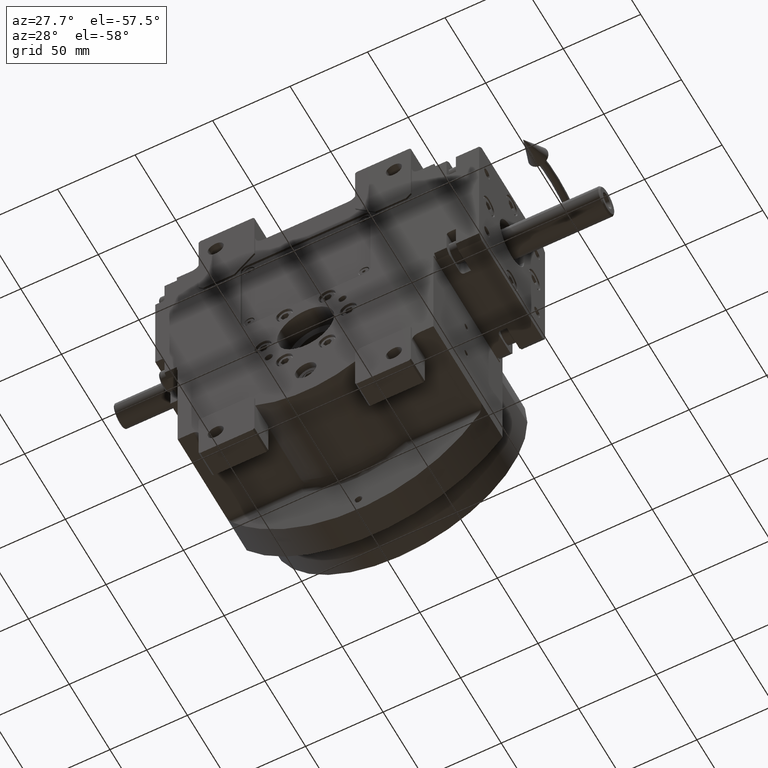
[diagram: clean part render]
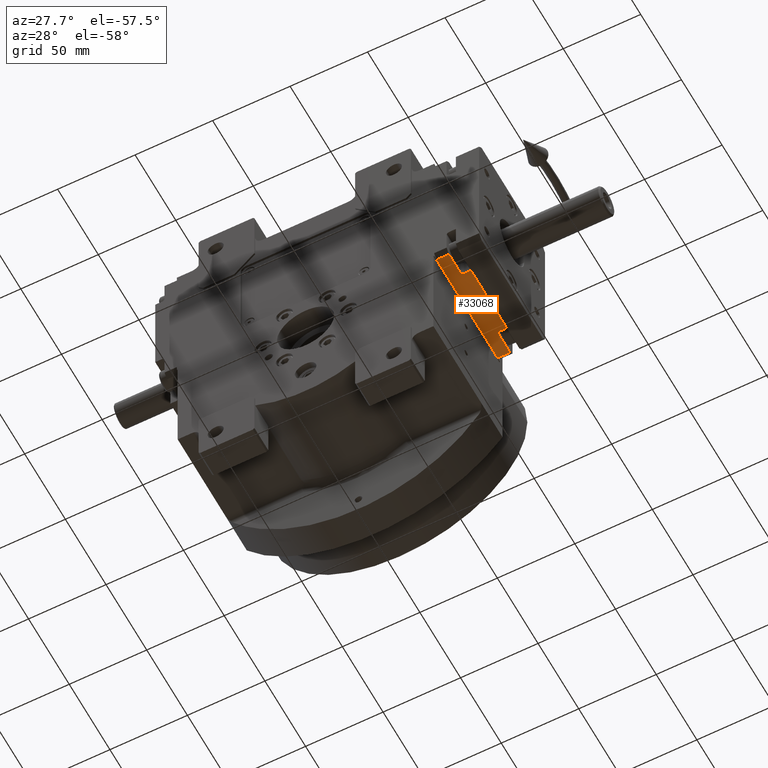
[diagram: same view with one face highlighted and labeled with its STEP entity id]
A machine part, auxiliary view. The second image highlights one B-rep face of the part: STEP entity #33068.
In plain terms, the highlighted planar face has unit normal (0, 0, -1).
Its self-contained STEP definition (entity closure, byte-faithful):
#428 = CARTESIAN_POINT ( 'NONE',  ( 40.50000000000000000, 5.273559366969493567E-13, -48.99999999999973710 ) ) ;
#1207 = DIRECTION ( 'NONE',  ( 1.287521551340668722E-30, 1.000000000000000000, 0.000000000000000000 ) ) ;
#3073 = LINE ( 'NONE', #19732, #58399 ) ;
#3541 = ORIENTED_EDGE ( 'NONE', *, *, #59144, .F. ) ;
#3809 = CARTESIAN_POINT ( 'NONE',  ( -37.50000000000000000, -7.999999999999479527, -49.00000000000000000 ) ) ;
#4246 = ORIENTED_EDGE ( 'NONE', *, *, #70563, .T. ) ;
#4597 = CARTESIAN_POINT ( 'NONE',  ( -24.00000000000000000, -7.999999999999479527, -48.99999999999973710 ) ) ;
#5250 = CARTESIAN_POINT ( 'NONE',  ( -37.50000000000000000, 5.273559366969493567E-13, -48.99999999999973710 ) ) ;
#5491 = VECTOR ( 'NONE', #1207, 1000.000000000000000 ) ;
#5691 = CIRCLE ( 'NONE', #43474, 2.000000000000001776 ) ;
#6908 = CARTESIAN_POINT ( 'NONE',  ( 37.50000000000000000, 5.273559366969493567E-13, -49.00000000000000000 ) ) ;
#7699 = CIRCLE ( 'NONE', #44319, 2.000000000000000000 ) ;
#8825 = VECTOR ( 'NONE', #13717, 1000.000000000000000 ) ;
#10446 = CARTESIAN_POINT ( 'NONE',  ( -24.00000000000000000, -7.999999999999479527, -48.99999999999973710 ) ) ;
#11242 = CARTESIAN_POINT ( 'NONE',  ( -22.00000000000000000, -13.99999999999948486, -48.99999999999973710 ) ) ;
#12148 = EDGE_CURVE ( 'NONE', #16004, #48794, #40537, .T. ) ;
#12355 = EDGE_CURVE ( 'NONE', #21611, #41913, #5691, .T. ) ;
#12906 = CARTESIAN_POINT ( 'NONE',  ( -22.00000000000000000, -13.99999999999948486, -48.99999999999973710 ) ) ;
#13717 = DIRECTION ( 'NONE',  ( -1.287521551340668722E-30, -1.000000000000000000, 0.000000000000000000 ) ) ;
#14682 = DIRECTION ( 'NONE',  ( -1.000000000000000000, -1.287521551340668722E-30, 0.000000000000000000 ) ) ;
#14994 = VECTOR ( 'NONE', #50353, 1000.000000000000000 ) ;
#15752 = CARTESIAN_POINT ( 'NONE',  ( 24.00000000000000000, -7.999999999999479527, -48.99999999999973710 ) ) ;
#16004 = VERTEX_POINT ( 'NONE', #33396 ) ;
#17081 = ORIENTED_EDGE ( 'NONE', *, *, #50359, .T. ) ;
#17122 = ORIENTED_EDGE ( 'NONE', *, *, #12355, .T. ) ;
#17129 = EDGE_CURVE ( 'NONE', #16004, #18039, #43149, .T. ) ;
#17833 = PLANE ( 'NONE',  #30248 ) ;
#18039 = VERTEX_POINT ( 'NONE', #21095 ) ;
#19732 = CARTESIAN_POINT ( 'NONE',  ( 22.00000000000000000, -13.99999999999948486, -48.99999999999973710 ) ) ;
#21095 = CARTESIAN_POINT ( 'NONE',  ( -37.50000000000000000, 5.273559366969493567E-13, -48.99999999999973710 ) ) ;
#21611 = VERTEX_POINT ( 'NONE', #49168 ) ;
#23054 = ORIENTED_EDGE ( 'NONE', *, *, #69845, .F. ) ;
#24557 = DIRECTION ( 'NONE',  ( -1.000000000000000000, -1.287521551340668722E-30, 0.000000000000000000 ) ) ;
#28887 = VERTEX_POINT ( 'NONE', #3809 ) ;
#29320 = LINE ( 'NONE', #63640, #5491 ) ;
#30248 = AXIS2_PLACEMENT_3D ( 'NONE', #428, #34798, #63236 ) ;
#30417 = LINE ( 'NONE', #70599, #38000 ) ;
#30646 = DIRECTION ( 'NONE',  ( 1.287521551340668722E-30, 1.000000000000000000, 0.000000000000000000 ) ) ;
#33068 = ADVANCED_FACE ( 'NONE', ( #39996 ), #17833, .T. ) ;
#33396 = CARTESIAN_POINT ( 'NONE',  ( 37.50000000000000000, 5.273559366969493567E-13, -49.00000000000000000 ) ) ;
#33691 = EDGE_CURVE ( 'NONE', #71576, #21611, #41025, .T. ) ;
#34203 = DIRECTION ( 'NONE',  ( 0.000000000000000000, 0.000000000000000000, 1.000000000000000000 ) ) ;
#34798 = DIRECTION ( 'NONE',  ( -0.000000000000000000, 0.000000000000000000, -1.000000000000000000 ) ) ;
#35613 = VERTEX_POINT ( 'NONE', #40944 ) ;
#36683 = ORIENTED_EDGE ( 'NONE', *, *, #12148, .T. ) ;
#36776 = CARTESIAN_POINT ( 'NONE',  ( -24.00000000000000000, -9.999999999999481304, -48.99999999999973710 ) ) ;
#38000 = VECTOR ( 'NONE', #41845, 1000.000000000000000 ) ;
#39042 = VERTEX_POINT ( 'NONE', #63364 ) ;
#39373 = CARTESIAN_POINT ( 'NONE',  ( 24.00000000000000000, -9.999999999999481304, -48.99999999999973710 ) ) ;
#39996 = FACE_OUTER_BOUND ( 'NONE', #65119, .T. ) ;
#40537 = LINE ( 'NONE', #6908, #66978 ) ;
#40944 = CARTESIAN_POINT ( 'NONE',  ( 22.00000000000000000, -9.999999999999481304, -48.99999999999973710 ) ) ;
#41025 = LINE ( 'NONE', #12906, #68005 ) ;
#41845 = DIRECTION ( 'NONE',  ( -1.000000000000000000, -1.287521551340668722E-30, 0.000000000000000000 ) ) ;
#41913 = VERTEX_POINT ( 'NONE', #4597 ) ;
#43149 = LINE ( 'NONE', #43869, #44910 ) ;
#43474 = AXIS2_PLACEMENT_3D ( 'NONE', #36776, #59294, #65232 ) ;
#43849 = CARTESIAN_POINT ( 'NONE',  ( 37.50000000000000000, -7.999999999999479527, -49.00000000000000000 ) ) ;
#43869 = CARTESIAN_POINT ( 'NONE',  ( 37.50000000000000000, 5.273559366969493567E-13, -49.00000000000000000 ) ) ;
#44319 = AXIS2_PLACEMENT_3D ( 'NONE', #39373, #34203, #62989 ) ;
#44910 = VECTOR ( 'NONE', #14682, 1000.000000000000000 ) ;
#48794 = VERTEX_POINT ( 'NONE', #43849 ) ;
#49168 = CARTESIAN_POINT ( 'NONE',  ( -22.00000000000000000, -9.999999999999481304, -48.99999999999973710 ) ) ;
#50353 = DIRECTION ( 'NONE',  ( -1.000000000000000000, -1.287521551340668722E-30, 0.000000000000000000 ) ) ;
#50359 = EDGE_CURVE ( 'NONE', #39042, #71576, #3073, .T. ) ;
#51990 = ORIENTED_EDGE ( 'NONE', *, *, #71884, .T. ) ;
#54663 = ORIENTED_EDGE ( 'NONE', *, *, #33691, .T. ) ;
#55866 = LINE ( 'NONE', #5250, #8825 ) ;
#55987 = EDGE_CURVE ( 'NONE', #48794, #68975, #30417, .T. ) ;
#58399 = VECTOR ( 'NONE', #24557, 1000.000000000000000 ) ;
#59144 = EDGE_CURVE ( 'NONE', #18039, #28887, #55866, .T. ) ;
#59294 = DIRECTION ( 'NONE',  ( 0.000000000000000000, 0.000000000000000000, 1.000000000000000000 ) ) ;
#60422 = ORIENTED_EDGE ( 'NONE', *, *, #17129, .F. ) ;
#62365 = ORIENTED_EDGE ( 'NONE', *, *, #55987, .T. ) ;
#62489 = LINE ( 'NONE', #10446, #14994 ) ;
#62989 = DIRECTION ( 'NONE',  ( 0.000000000000000000, 1.000000000000000000, 0.000000000000000000 ) ) ;
#63236 = DIRECTION ( 'NONE',  ( -1.000000000000000000, -1.287521551340668722E-30, 0.000000000000000000 ) ) ;
#63364 = CARTESIAN_POINT ( 'NONE',  ( 22.00000000000000000, -13.99999999999948486, -48.99999999999973710 ) ) ;
#63640 = CARTESIAN_POINT ( 'NONE',  ( 22.00000000000000000, -13.99999999999948486, -48.99999999999973710 ) ) ;
#63781 = DIRECTION ( 'NONE',  ( -1.287521551340668722E-30, -1.000000000000000000, 0.000000000000000000 ) ) ;
#65119 = EDGE_LOOP ( 'NONE', ( #3541, #60422, #36683, #62365, #4246, #23054, #17081, #54663, #17122, #51990 ) ) ;
#65232 = DIRECTION ( 'NONE',  ( 1.000000000000000000, -1.734723475976805517E-15, 0.000000000000000000 ) ) ;
#66978 = VECTOR ( 'NONE', #63781, 1000.000000000000000 ) ;
#68005 = VECTOR ( 'NONE', #30646, 1000.000000000000000 ) ;
#68975 = VERTEX_POINT ( 'NONE', #15752 ) ;
#69845 = EDGE_CURVE ( 'NONE', #39042, #35613, #29320, .T. ) ;
#70563 = EDGE_CURVE ( 'NONE', #68975, #35613, #7699, .T. ) ;
#70599 = CARTESIAN_POINT ( 'NONE',  ( 37.50000000000000000, -7.999999999999479527, -49.00000000000000000 ) ) ;
#71576 = VERTEX_POINT ( 'NONE', #11242 ) ;
#71884 = EDGE_CURVE ( 'NONE', #41913, #28887, #62489, .T. ) ;